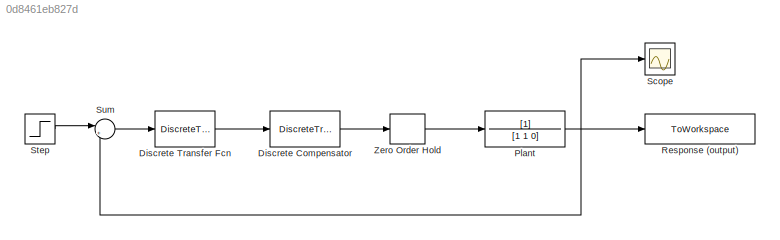
MODEL slx_0d8461eb827d
KIND model
CONFIG AbsTol = auto
CONFIG EnableMultiTasking = off
CONFIG FixedStep = auto
CONFIG MaxStep = auto
CONFIG MinStep = auto
CONFIG RelTol = 1e-3
CONFIG SampleTimeConstraint = Unconstrained
CONFIG SolverName = VariableStepAuto
CONFIG StartTime = 0.0
CONFIG StopTime = 2
BLOCK [DiscreteTransferFcn] Discrete Compensator
  Denominator = [1 0]
  InputPortMap = u0
  Numerator = [50 -40]
  Ports = [1, 1]
  SampleTime = 0.1
BLOCK [DiscreteTransferFcn] Discrete Transfer Fcn
  Denominator = [1]
  InputPortMap = u0
  Ports = [1, 1]
  SampleTime = 0.1
BLOCK [TransferFcn] Plant
  Denominator = [1 1 0]
BLOCK [ToWorkspace] Response (output)
  FixptAsFi = on
  MaxDataPoints = inf
  Ports = [1]
  SampleTime = 0.1
  SaveFormat = Timeseries
  VariableName = y_10hz_digital
BLOCK [Scope] Scope
  Floating = off
  NumInputPorts = 1
  Ports = [1]
  ScopeSpecificationString = Simulink.scopes.TimeScopeBlockCfg('CurrentConfiguration', extmgr.ConfigurationSet(extmgr.Configuration('Core','General UI',true),extmgr.Configuration('Core','Source UI',true),extmgr.Configuration('Sources','WiredSimulink',true),extmgr.Configuration('Visuals','Time Domain',true,'SerializedDisplays',{struct('MinYLimReal','-0.15123','MaxYLimReal','1.36103','YLabelReal','','MinYLimMag','0.00000','MaxY...<+1325ch>
BLOCK [Step] Step
  SampleTime = 0
  Time = 0
BLOCK [Sum] Sum
  Inputs = |+-
  Ports = [2, 1]
BLOCK [ZeroOrderHold] Zero Order Hold
  SampleTime = 0.1
LINE Discrete Compensator:1 -> Zero Order Hold:1
LINE Discrete Transfer Fcn:1 -> Discrete Compensator:1
NET Plant:1 -> Response (output):1, Scope:1, Sum:2
LINE Step:1 -> Sum:1
LINE Sum:1 -> Discrete Transfer Fcn:1
LINE Zero Order Hold:1 -> Plant:1
note: NET lines group one-source signal fan-out (src -> all destinations, sorted); 1:1 wires keep LINE
